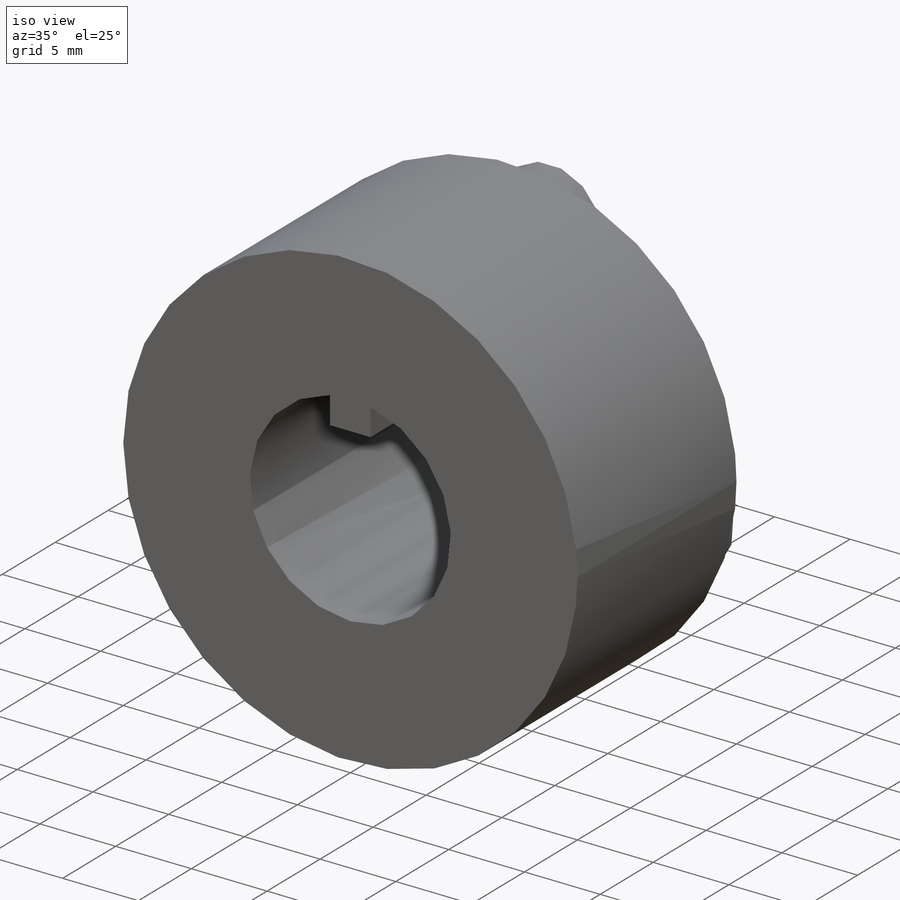
[diagram: iso view]
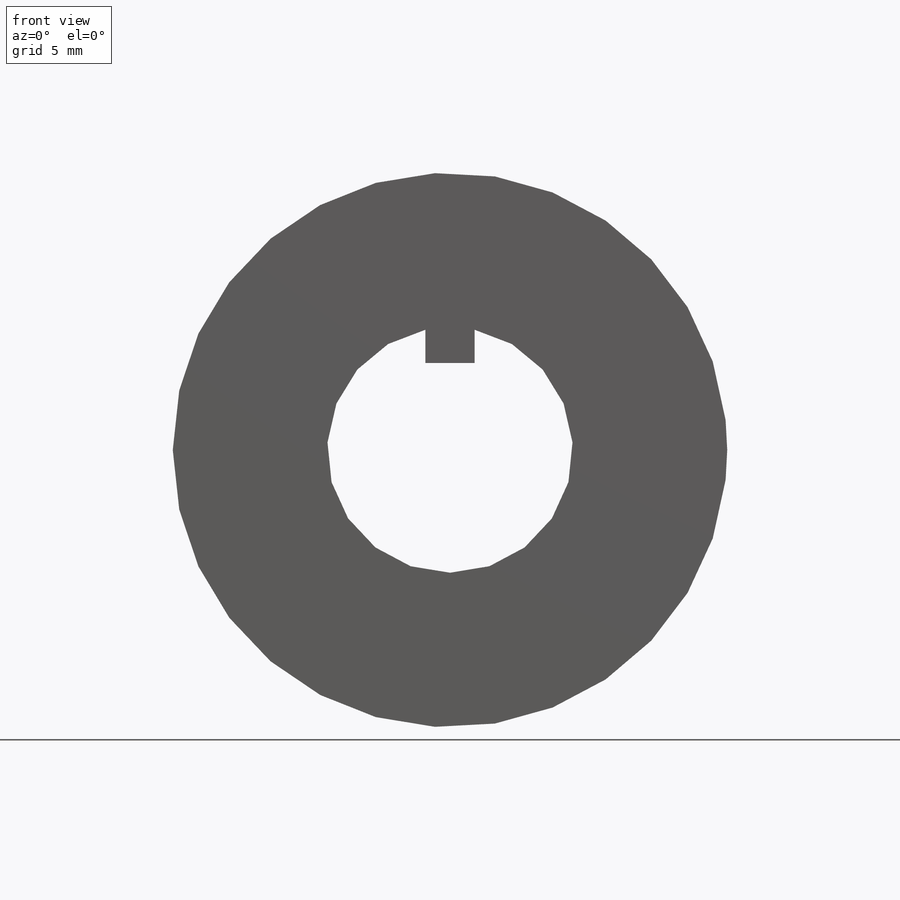
[diagram: front view]
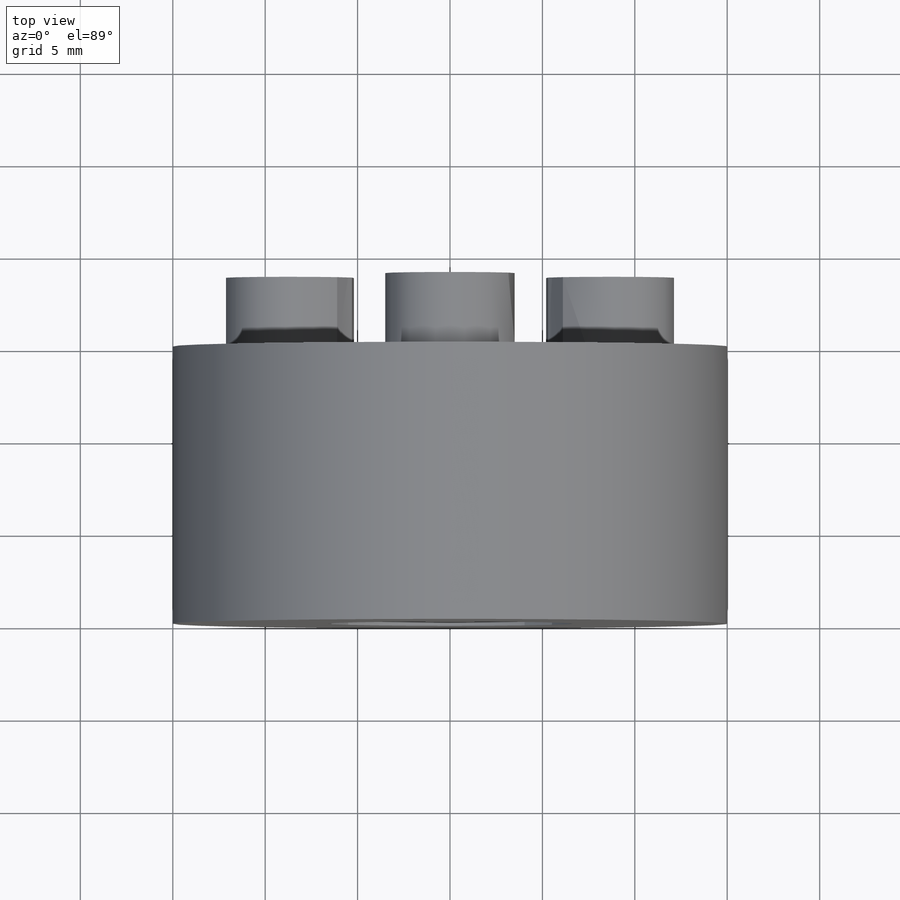
[diagram: top view]
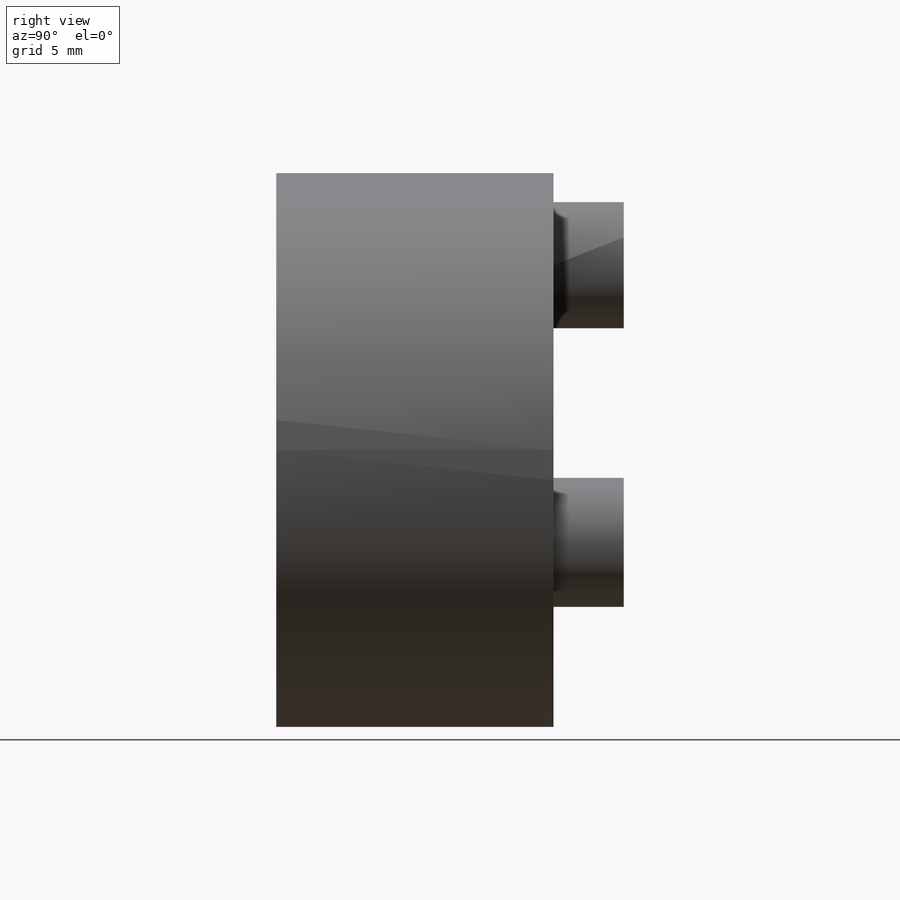
[diagram: right view]
SOLIDWORKS PART (.sldprt)
format: sldprt  version: not decoded by parser v0  size: 261,632 bytes
history: native  units: mm
features: sketch x3, extrude x2, material x1, cut_extrude x1 (+13 scaffold rows collapsed)
feature tree (20):
  scaffold x13  (default folders/planes/origin — collapsed)
  material  "Material <not specified>"
  sketch  "GearFaceProfile"  dims[D1=30.0mm]
  extrude  "GearFaceExtrude"  Depth=15mm
  sketch  "Sketch1"  dims[c1.D1=19.0mm c1.D2=1.335mm c1.D3=1.335mm c1.D4=1.8mm c2.D2=1.8mm c2.D3=2.67mm]
  cut_extrude  "CenterSlot"  [1 undecoded]
  sketch  "Sketch2"  dims[D1=7.0mm D2=10.0mm D3=10.0mm]
  extrude  "GearConnectors"  Depth=3.8mm
decode coverage: 5 of 6 modeling features carry decoded parameters
note: 1 parameter value undecoded
note: suppression state not decoded; provenance and decode notes live in map.json
